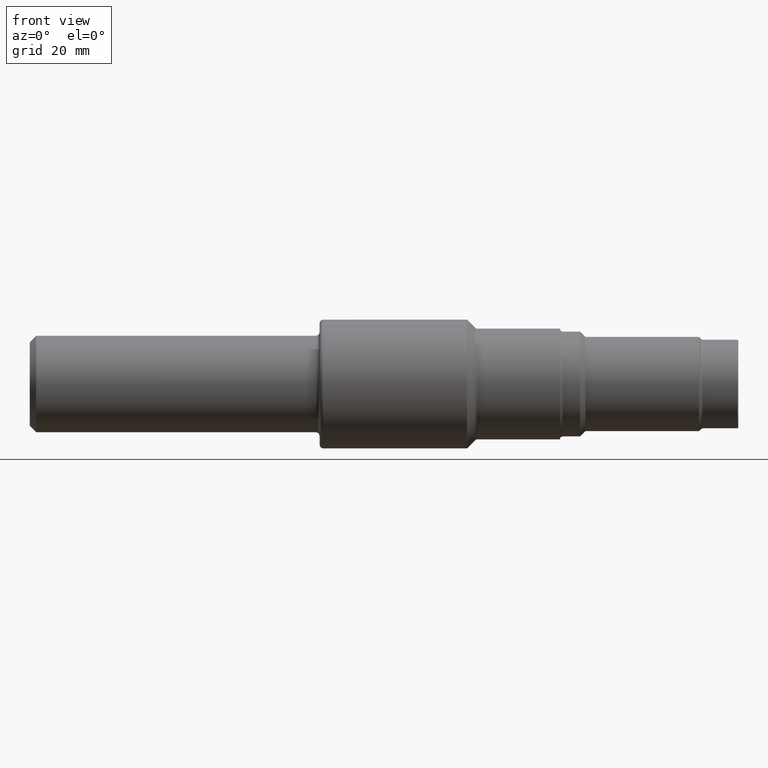
[diagram: clean part render]
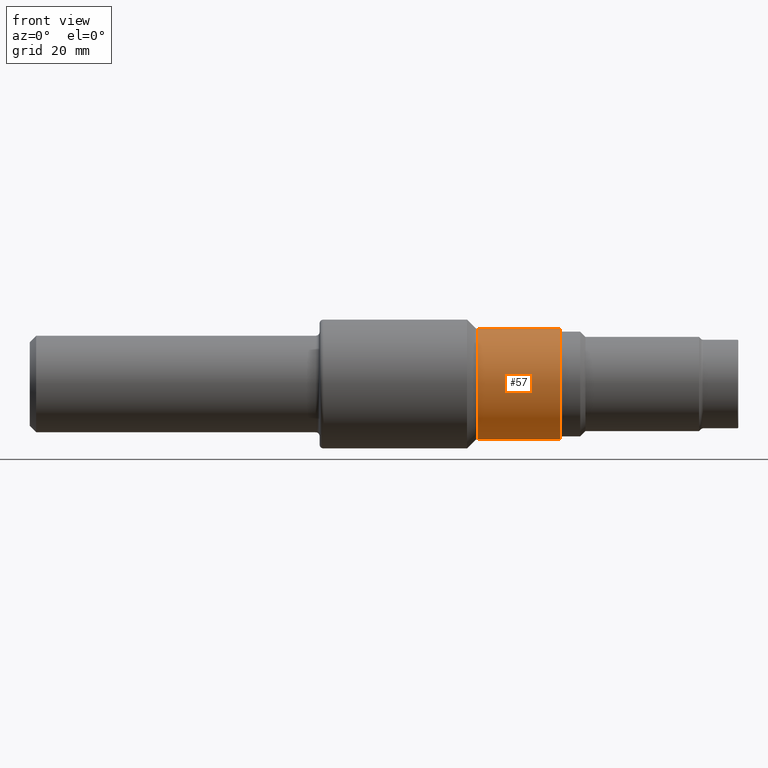
[diagram: same view with one face highlighted and labeled with its STEP entity id]
A machine part, front view. The second image highlights one B-rep face of the part: STEP entity #57.
In plain terms, the highlighted cylindrical surface (partial cylindrical patch) has radius 10.9195 mm, axis along (-1, -0, -0).
Its self-contained STEP definition (entity closure, byte-faithful):
#37 = CARTESIAN_POINT ( 'NONE',  ( 4.117499999999999716, 0.000000000000000000, 0.4299000000000000599 ) ) ;
#56 = CARTESIAN_POINT ( 'NONE',  ( 4.117499999999999716, 0.000000000000000000, 0.000000000000000000 ) ) ;
#57 = ADVANCED_FACE ( 'NONE', ( #423 ), #662, .T. ) ;
#81 = CARTESIAN_POINT ( 'NONE',  ( 0.000000000000000000, 0.000000000000000000, 0.4299000000000000599 ) ) ;
#169 = EDGE_CURVE ( 'NONE', #713, #769, #704, .T. ) ;
#176 = CARTESIAN_POINT ( 'NONE',  ( 0.000000000000000000, 0.000000000000000000, 0.000000000000000000 ) ) ;
#180 = VECTOR ( 'NONE', #876, 39.37007874015748143 ) ;
#214 = DIRECTION ( 'NONE',  ( 0.000000000000000000, 0.000000000000000000, 1.000000000000000000 ) ) ;
#219 = DIRECTION ( 'NONE',  ( -1.000000000000000000, -0.000000000000000000, -0.000000000000000000 ) ) ;
#267 = EDGE_CURVE ( 'NONE', #664, #527, #411, .T. ) ;
#292 = ORIENTED_EDGE ( 'NONE', *, *, #169, .F. ) ;
#331 = EDGE_CURVE ( 'NONE', #527, #769, #389, .T. ) ;
#389 = LINE ( 'NONE', #81, #180 ) ;
#400 = CARTESIAN_POINT ( 'NONE',  ( 3.473612698372208207, 5.264756589534471859E-17, -0.4299000000000000599 ) ) ;
#411 = CIRCLE ( 'NONE', #556, 0.4299000000000000599 ) ;
#423 = FACE_OUTER_BOUND ( 'NONE', #508, .T. ) ;
#440 = DIRECTION ( 'NONE',  ( -1.000000000000000000, -0.000000000000000000, -0.000000000000000000 ) ) ;
#478 = AXIS2_PLACEMENT_3D ( 'NONE', #176, #605, #583 ) ;
#508 = EDGE_LOOP ( 'NONE', ( #948, #707, #843, #292 ) ) ;
#522 = AXIS2_PLACEMENT_3D ( 'NONE', #836, #440, #766 ) ;
#527 = VERTEX_POINT ( 'NONE', #37 ) ;
#556 = AXIS2_PLACEMENT_3D ( 'NONE', #56, #859, #214 ) ;
#583 = DIRECTION ( 'NONE',  ( 0.000000000000000000, 0.000000000000000000, 1.000000000000000000 ) ) ;
#597 = EDGE_CURVE ( 'NONE', #664, #713, #1018, .T. ) ;
#605 = DIRECTION ( 'NONE',  ( -1.000000000000000000, -0.000000000000000000, -0.000000000000000000 ) ) ;
#662 = CYLINDRICAL_SURFACE ( 'NONE', #478, 0.4299000000000000599 ) ;
#664 = VERTEX_POINT ( 'NONE', #875 ) ;
#667 = CARTESIAN_POINT ( 'NONE',  ( 3.473612698372208207, 0.000000000000000000, 0.4299000000000000599 ) ) ;
#672 = VECTOR ( 'NONE', #219, 39.37007874015748143 ) ;
#704 = CIRCLE ( 'NONE', #522, 0.4299000000000000599 ) ;
#707 = ORIENTED_EDGE ( 'NONE', *, *, #267, .T. ) ;
#713 = VERTEX_POINT ( 'NONE', #400 ) ;
#766 = DIRECTION ( 'NONE',  ( 0.000000000000000000, 0.000000000000000000, 1.000000000000000000 ) ) ;
#769 = VERTEX_POINT ( 'NONE', #667 ) ;
#836 = CARTESIAN_POINT ( 'NONE',  ( 3.473612698372208207, 0.000000000000000000, 0.000000000000000000 ) ) ;
#843 = ORIENTED_EDGE ( 'NONE', *, *, #331, .T. ) ;
#859 = DIRECTION ( 'NONE',  ( -1.000000000000000000, -0.000000000000000000, -0.000000000000000000 ) ) ;
#875 = CARTESIAN_POINT ( 'NONE',  ( 4.117499999999999716, 5.264756589534471859E-17, -0.4299000000000000599 ) ) ;
#876 = DIRECTION ( 'NONE',  ( -1.000000000000000000, -0.000000000000000000, -0.000000000000000000 ) ) ;
#940 = CARTESIAN_POINT ( 'NONE',  ( 0.000000000000000000, 5.264756589534471859E-17, -0.4299000000000000599 ) ) ;
#948 = ORIENTED_EDGE ( 'NONE', *, *, #597, .F. ) ;
#1018 = LINE ( 'NONE', #940, #672 ) ;